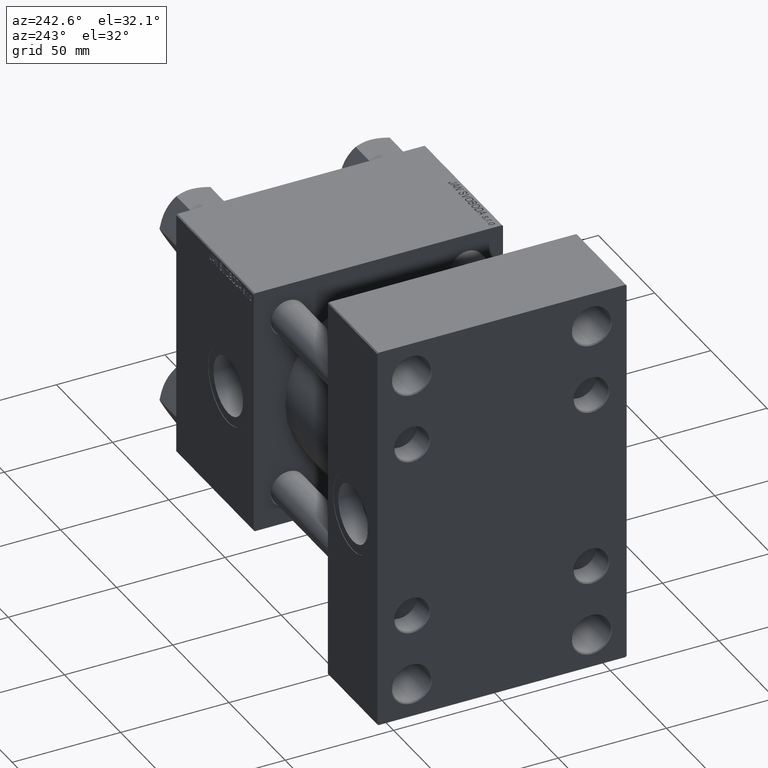
[diagram: clean part render]
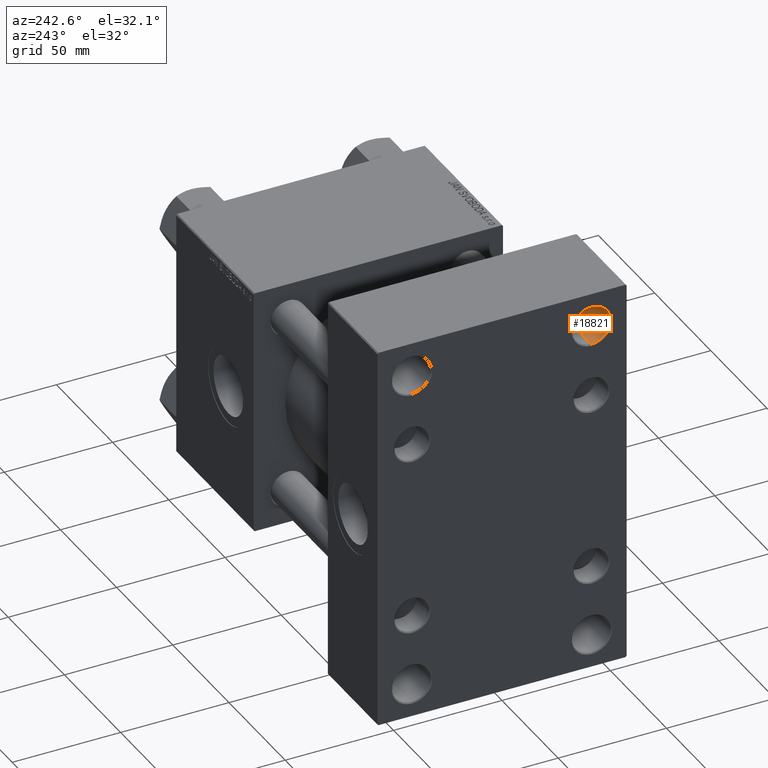
[diagram: same view with one face highlighted and labeled with its STEP entity id]
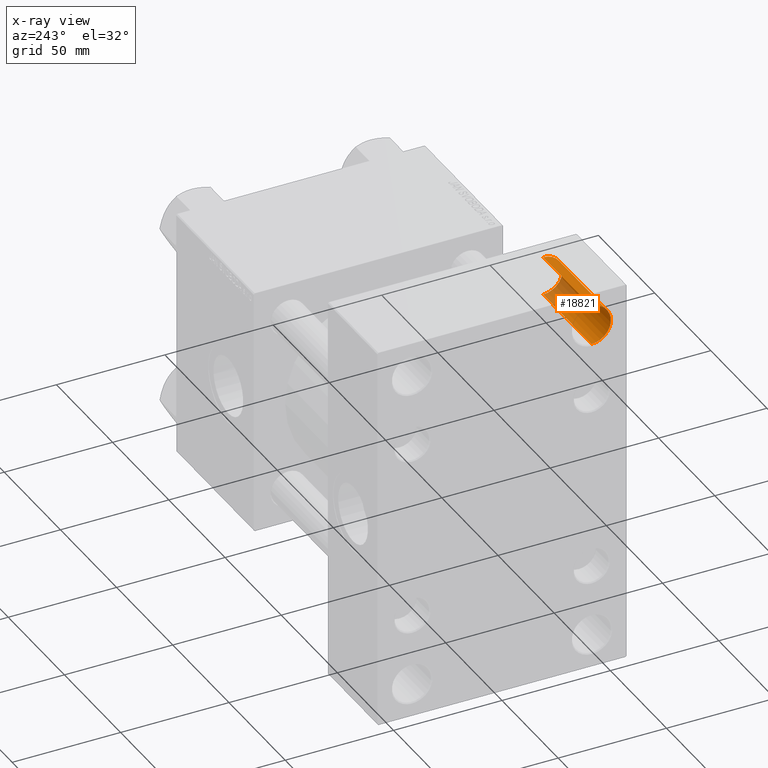
[diagram: x-ray of the same camera — body ghosted, the highlighted face saturated]
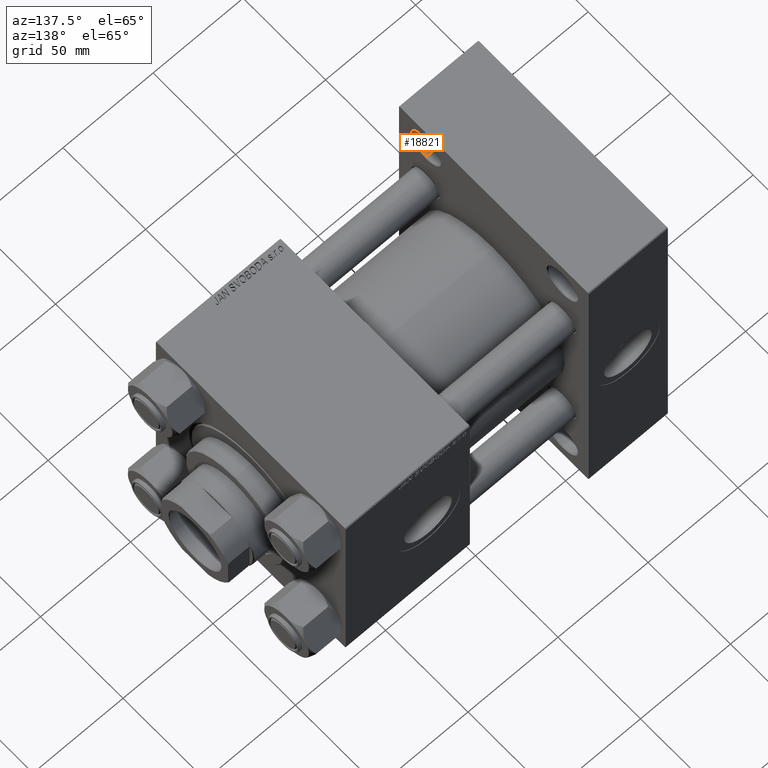
[diagram: same view with one face highlighted and labeled with its STEP entity id]
A machine part, auxiliary view. The second image highlights one B-rep face of the part: STEP entity #18821.
The next image is the same camera in x-ray: the body ghosted, the highlighted face saturated — about 26% of this face is hidden behind the body in this view.
A second angle (auxiliary view) of the same face is appended — the face is thin or edge-on in the first view.
In plain terms, the highlighted cylindrical surface (edge-blend (fillet) strip) has radius 9 mm, axis along (-1, -0, -0).
Its self-contained STEP definition (entity closure, byte-faithful):
#1282 = CARTESIAN_POINT ( 'NONE',  ( 69.45584412271568908, -41.50000000000000000, 83.49999999999998579 ) ) ;
#2345 = CARTESIAN_POINT ( 'NONE',  ( 43.49999999999996447, -41.50000000000000000, 65.50000000000000000 ) ) ;
#2946 = VECTOR ( 'NONE', #20157, 1000.000000000000000 ) ;
#9240 = AXIS2_PLACEMENT_3D ( 'NONE', #9639, #13195, #17278 ) ;
#9639 = CARTESIAN_POINT ( 'NONE',  ( 69.45584412271568908, -41.50000000000000000, 74.50000000000000000 ) ) ;
#10775 = EDGE_CURVE ( 'NONE', #34472, #48242, #49735, .T. ) ;
#11009 = DIRECTION ( 'NONE',  ( 0.000000000000000000, 0.000000000000000000, 1.000000000000000000 ) ) ;
#11715 = EDGE_LOOP ( 'NONE', ( #46086, #27164, #21400, #31196 ) ) ;
#12798 = EDGE_CURVE ( 'NONE', #43014, #48618, #21286, .T. ) ;
#13195 = DIRECTION ( 'NONE',  ( -1.000000000000000000, -0.000000000000000000, -0.000000000000000000 ) ) ;
#13258 = DIRECTION ( 'NONE',  ( -1.000000000000000000, -0.000000000000000000, -0.000000000000000000 ) ) ;
#17278 = DIRECTION ( 'NONE',  ( 0.000000000000000000, 0.000000000000000000, 1.000000000000000000 ) ) ;
#17359 = CARTESIAN_POINT ( 'NONE',  ( 0.4999999999999865663, -41.50000000000000000, 65.50000000000000000 ) ) ;
#18821 = ADVANCED_FACE ( 'NONE', ( #25170 ), #40729, .F. ) ;
#20157 = DIRECTION ( 'NONE',  ( -1.000000000000000000, -0.000000000000000000, -0.000000000000000000 ) ) ;
#21286 = CIRCLE ( 'NONE', #39177, 8.999999999999994671 ) ;
#21400 = ORIENTED_EDGE ( 'NONE', *, *, #12798, .T. ) ;
#21729 = CARTESIAN_POINT ( 'NONE',  ( 43.49999999999996447, -41.50000000000000000, 83.49999999999998579 ) ) ;
#22462 = CARTESIAN_POINT ( 'NONE',  ( 0.4999999999999865663, -41.50000000000000000, 74.50000000000000000 ) ) ;
#25170 = FACE_OUTER_BOUND ( 'NONE', #11715, .T. ) ;
#26345 = CARTESIAN_POINT ( 'NONE',  ( 0.4999999999999865663, -41.50000000000000000, 83.49999999999998579 ) ) ;
#27164 = ORIENTED_EDGE ( 'NONE', *, *, #45123, .T. ) ;
#27721 = AXIS2_PLACEMENT_3D ( 'NONE', #33348, #44850, #32840 ) ;
#28546 = CARTESIAN_POINT ( 'NONE',  ( 69.45584412271568908, -41.50000000000000000, 65.50000000000000000 ) ) ;
#30367 = DIRECTION ( 'NONE',  ( -1.000000000000000000, 0.000000000000000000, 0.000000000000000000 ) ) ;
#30666 = EDGE_CURVE ( 'NONE', #34472, #48618, #31363, .T. ) ;
#31196 = ORIENTED_EDGE ( 'NONE', *, *, #30666, .F. ) ;
#31363 = LINE ( 'NONE', #1282, #41297 ) ;
#32840 = DIRECTION ( 'NONE',  ( 0.000000000000000000, 0.000000000000000000, 1.000000000000000000 ) ) ;
#32860 = LINE ( 'NONE', #28546, #2946 ) ;
#33348 = CARTESIAN_POINT ( 'NONE',  ( 43.49999999999996447, -41.50000000000000000, 74.50000000000000000 ) ) ;
#34472 = VERTEX_POINT ( 'NONE', #21729 ) ;
#39177 = AXIS2_PLACEMENT_3D ( 'NONE', #22462, #30367, #11009 ) ;
#40729 = CYLINDRICAL_SURFACE ( 'NONE', #9240, 8.999999999999994671 ) ;
#41297 = VECTOR ( 'NONE', #13258, 1000.000000000000000 ) ;
#43014 = VERTEX_POINT ( 'NONE', #17359 ) ;
#44850 = DIRECTION ( 'NONE',  ( 1.000000000000000000, 0.000000000000000000, 0.000000000000000000 ) ) ;
#45123 = EDGE_CURVE ( 'NONE', #48242, #43014, #32860, .T. ) ;
#46086 = ORIENTED_EDGE ( 'NONE', *, *, #10775, .T. ) ;
#48242 = VERTEX_POINT ( 'NONE', #2345 ) ;
#48618 = VERTEX_POINT ( 'NONE', #26345 ) ;
#49735 = CIRCLE ( 'NONE', #27721, 8.999999999999994671 ) ;